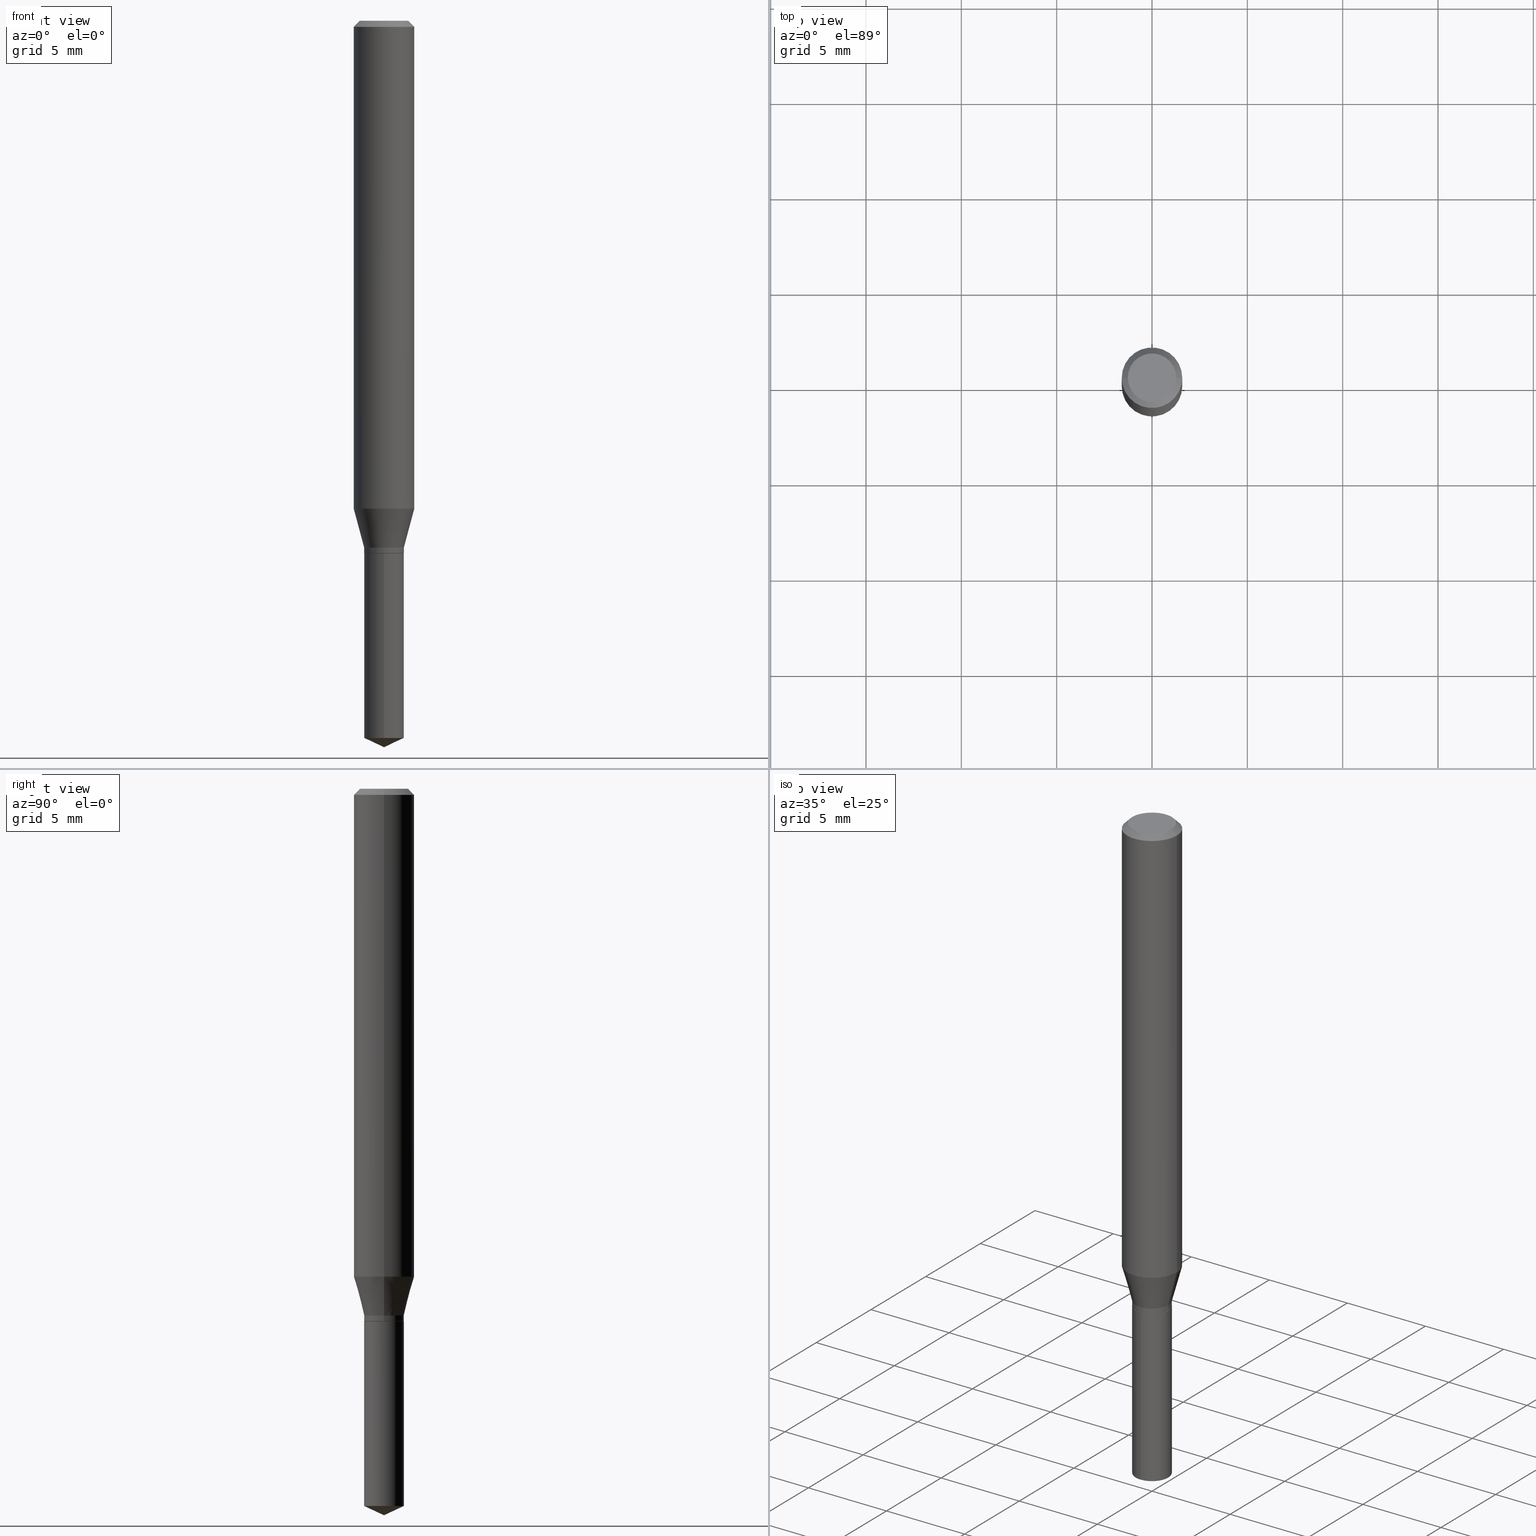
[diagram: canonical four-view strip — front | top / right | iso, engineering-drawing reading convention]
A machine part, canonical four-view strip (front | top / right | iso — engineering-drawing reading convention). The complete STEP part file that produces these views, byte-faithful:
ISO-10303-21;
HEADER;
FILE_DESCRIPTION (( 'STEP AP203' ),
    '1' );
FILE_NAME ('07192.STEP',
    '2024-04-23T19:56:55',
    ( '' ),
    ( '' ),
    'SwSTEP 2.0',
    'SolidWorks 2023',
    '' );
FILE_SCHEMA (( 'CONFIG_CONTROL_DESIGN' ));
ENDSEC;

DATA;
#1 = DIRECTION ( 'NONE',  ( 1.000000000000000000, -6.982962677686265922E-15, 4.875957971899673662E-29 ) ) ;
#2 = EDGE_CURVE ( 'NONE', #490, #420, #137, .T. ) ;
#3 = VECTOR ( 'NONE', #289, 39.37007874015748143 ) ;
#4 = AXIS2_PLACEMENT_3D ( 'NONE', #75, #293, #406 ) ;
#5 = LOCAL_TIME ( 15, 56, 55.00000000000000000, #257 ) ;
#6 = EDGE_CURVE ( 'NONE', #83, #442, #345, .T. ) ;
#7 = LINE ( 'NONE', #282, #467 ) ;
#8 = DESIGN_CONTEXT ( 'detailed design', #149, 'design' ) ;
#9 = CARTESIAN_POINT ( 'NONE',  ( -9.260740279983036507E-28, 1.322265303911854087E-13, 37.87007874015748143 ) ) ;
#10 = CONICAL_SURFACE ( 'NONE', #448, 0.04100000000000000172, 0.2617993877991500740 ) ;
#11 = CARTESIAN_POINT ( 'NONE',  ( 3.668099535622682155E-29, -5.237370474839448718E-15, -1.500000000000000222 ) ) ;
#12 = APPROVAL ( #441, 'UNSPECIFIED' ) ;
#13 = EDGE_LOOP ( 'NONE', ( #434, #386, #171, #367 ) ) ;
#14 = ORIENTED_EDGE ( 'NONE', *, *, #151, .T. ) ;
#15 = AXIS2_PLACEMENT_3D ( 'NONE', #42, #463, #425 ) ;
#16 = VERTEX_POINT ( 'NONE', #240 ) ;
#17 = PRODUCT ( '07192', '07192', '', ( #214 ) ) ;
#18 = DIRECTION ( 'NONE',  ( -2.445468806185136597E-29, 3.491481338843145583E-15, 1.000000000000000000 ) ) ;
#19 = EDGE_CURVE ( 'NONE', #271, #205, #27, .T. ) ;
#20 = COORDINATED_UNIVERSAL_TIME_OFFSET ( 5, 0, .BEHIND. ) ;
#21 = ORIENTED_EDGE ( 'NONE', *, *, #235, .F. ) ;
#22 = DIRECTION ( 'NONE',  ( 2.445468806185136597E-29, -3.491481338843145583E-15, -1.000000000000000000 ) ) ;
#23 = EDGE_LOOP ( 'NONE', ( #328, #244, #462, #356 ) ) ;
#24 = DIRECTION ( 'NONE',  ( -2.445468806185136597E-29, 3.491481338843145583E-15, 1.000000000000000000 ) ) ;
#25 = COORDINATED_UNIVERSAL_TIME_OFFSET ( 5, 0, .BEHIND. ) ;
#26 = CYLINDRICAL_SURFACE ( 'NONE', #464, 0.04100000000000000172 ) ;
#27 = CIRCLE ( 'NONE', #415, 0.04100000000000000172 ) ;
#28 = EDGE_CURVE ( 'NONE', #96, #16, #70, .T. ) ;
#29 = DIRECTION ( 'NONE',  ( -2.445399690415121530E-29, 3.491580316559632610E-15, 1.000000000000000000 ) ) ;
#30 = FACE_OUTER_BOUND ( 'NONE', #432, .T. ) ;
#31 = CARTESIAN_POINT ( 'NONE',  ( -0.06250000000000000000, 3.927916506198521080E-16, -0.01250000000000008049 ) ) ;
#32 = DATE_AND_TIME ( #218, #264 ) ;
#33 = VERTEX_POINT ( 'NONE', #100 ) ;
#34 = FACE_OUTER_BOUND ( 'NONE', #417, .T. ) ;
#35 = FACE_OUTER_BOUND ( 'NONE', #484, .T. ) ;
#36 = CARTESIAN_POINT ( 'NONE',  ( 3.056836007731440539E-31, -4.364351673553960451E-17, -0.01250000000000008049 ) ) ;
#37 = LOCAL_TIME ( 15, 56, 55.00000000000000000, #20 ) ;
#38 = EDGE_CURVE ( 'NONE', #205, #199, #247, .T. ) ;
#39 = AXIS2_PLACEMENT_3D ( 'NONE', #256, #71, #220 ) ;
#40 = EDGE_CURVE ( 'NONE', #16, #96, #476, .T. ) ;
#41 = DIRECTION ( 'NONE',  ( 1.000000000000000000, -6.982962677686267499E-15, 4.876176775795936353E-29 ) ) ;
#42 = CARTESIAN_POINT ( 'NONE',  ( 3.056836007731440539E-31, -4.364351673553960451E-17, -0.01250000000000008049 ) ) ;
#43 = ORIENTED_EDGE ( 'NONE', *, *, #481, .F. ) ;
#44 = CARTESIAN_POINT ( 'NONE',  ( 2.688792952400557567E-29, -3.838883732058038598E-15, -1.099499999999999922 ) ) ;
#45 = EDGE_CURVE ( 'NONE', #33, #442, #222, .T. ) ;
#46 = CIRCLE ( 'NONE', #239, 0.04100000000000000172 ) ;
#47 = ORIENTED_EDGE ( 'NONE', *, *, #91, .F. ) ;
#48 = AXIS2_PLACEMENT_3D ( 'NONE', #186, #450, #411 ) ;
#49 = ORIENTED_EDGE ( 'NONE', *, *, #351, .F. ) ;
#50 = DIRECTION ( 'NONE',  ( -2.445468806185136597E-29, 3.491481338843145583E-15, 1.000000000000000000 ) ) ;
#51 = CONICAL_SURFACE ( 'NONE', #162, 0.04050000000000000128, 0.7853981633974141952 ) ;
#52 = UNCERTAINTY_MEASURE_WITH_UNIT (LENGTH_MEASURE( 1.000000000000000082E-05 ), #140, 'distance_accuracy_value', 'NONE');
#53 = ORIENTED_EDGE ( 'NONE', *, *, #6, .T. ) ;
#54 = VECTOR ( 'NONE', #67, 39.37007874015748854 ) ;
#55 = ADVANCED_FACE ( 'NONE', ( #108 ), #338, .T. ) ;
#56 = CYLINDRICAL_SURFACE ( 'NONE', #262, 0.06250000000000005551 ) ;
#57 = CARTESIAN_POINT ( 'NONE',  ( -0.06250000000000000000, -1.336498027832457228E-15, -0.01250000000000008049 ) ) ;
#58 = EDGE_LOOP ( 'NONE', ( #187, #426, #185, #90 ) ) ;
#59 = PRODUCT_DEFINITION_SHAPE ( 'NONE', 'NONE',  #281 ) ;
#60 = FACE_OUTER_BOUND ( 'NONE', #134, .T. ) ;
#61 = CARTESIAN_POINT ( 'NONE',  ( 3.621422910251190172E-29, -5.170507423083637704E-15, -1.480881386015644896 ) ) ;
#62 = CARTESIAN_POINT ( 'NONE',  ( 2.463714223077906368E-29, -3.517530958629502494E-15, -1.007460907637268921 ) ) ;
#63 = LINE ( 'NONE', #31, #310 ) ;
#64 = DATE_TIME_ROLE ( 'creation_date' ) ;
#65 = ADVANCED_FACE ( 'NONE', ( #30 ), #144, .T. ) ;
#66 = DIRECTION ( 'NONE',  ( -6.982962677686268288E-15, -1.000000000000000000, 3.520397390770518557E-15 ) ) ;
#67 = DIRECTION ( 'NONE',  ( -0.7071067811865232589, 7.493145998870265808E-15, 0.7071067811865715536 ) ) ;
#68 = DIRECTION ( 'NONE',  ( -6.982962677686266711E-15, -1.000000000000000000, 6.663043886986007407E-15 ) ) ;
#69 = DIRECTION ( 'NONE',  ( 2.445468806185136597E-29, -3.491481338843145583E-15, -1.000000000000000000 ) ) ;
#70 = CIRCLE ( 'NONE', #153, 0.04050000000000000128 ) ;
#71 = DIRECTION ( 'NONE',  ( -2.438088387897960049E-29, 3.491481338843145188E-15, 1.000000000000000000 ) ) ;
#72 = COORDINATED_UNIVERSAL_TIME_OFFSET ( 5, 0, .BEHIND. ) ;
#73 = DIRECTION ( 'NONE',  ( -2.445399690415121530E-29, 3.491580316559632610E-15, 1.000000000000000000 ) ) ;
#74 = DIRECTION ( 'NONE',  ( 2.438088387897960049E-29, -3.491481338843145188E-15, -1.000000000000000000 ) ) ;
#75 = CARTESIAN_POINT ( 'NONE',  ( 0.000000000000000000, 0.000000000000000000, 0.000000000000000000 ) ) ;
#76 = ADVANCED_FACE ( 'NONE', ( #373 ), #201, .T. ) ;
#77 = CONICAL_SURFACE ( 'NONE', #184, 84.42940631927278616, 1.134464013796308901 ) ;
#78 = AXIS2_PLACEMENT_3D ( 'NONE', #150, #368, #1 ) ;
#79 = EDGE_CURVE ( 'NONE', #33, #353, #326, .T. ) ;
#80 = CALENDAR_DATE ( 2024, 23, 4 ) ;
#81 = CARTESIAN_POINT ( 'NONE',  ( 0.000000000000000000, 0.000000000000000000, 0.000000000000000000 ) ) ;
#82 = AXIS2_PLACEMENT_3D ( 'NONE', #391, #283, #103 ) ;
#83 = VERTEX_POINT ( 'NONE', #215 ) ;
#84 = DIRECTION ( 'NONE',  ( -2.445468806185136597E-29, 3.491481338843145583E-15, 1.000000000000000000 ) ) ;
#85 = DIRECTION ( 'NONE',  ( -2.445468806185136597E-29, 3.491481338843145583E-15, 1.000000000000000000 ) ) ;
#86 = ADVANCED_FACE ( 'NONE', ( #365 ), #445, .F. ) ;
#87 = DIRECTION ( 'NONE',  ( 1.000000000000000000, -6.982962677686261977E-15, 0.000000000000000000 ) ) ;
#88 = AXIS2_PLACEMENT_3D ( 'NONE', #485, #258, #110 ) ;
#89 = CARTESIAN_POINT ( 'NONE',  ( 2.690015686803650369E-29, -3.840629472727460101E-15, -1.100000000000000089 ) ) ;
#90 = ORIENTED_EDGE ( 'NONE', *, *, #216, .F. ) ;
#91 = EDGE_CURVE ( 'NONE', #379, #200, #388, .T. ) ;
#92 = PERSON_AND_ORGANIZATION_ROLE ( 'creator' ) ;
#93 = DIRECTION ( 'NONE',  ( -2.445399690415121530E-29, 3.491580316559632610E-15, 1.000000000000000000 ) ) ;
#94 = CARTESIAN_POINT ( 'NONE',  ( 3.668099535622682715E-29, -5.237370474839449507E-15, -1.500000000000000222 ) ) ;
#95 = PERSON_AND_ORGANIZATION ( #342, #374 ) ;
#96 = VERTEX_POINT ( 'NONE', #329 ) ;
#97 = CC_DESIGN_SECURITY_CLASSIFICATION ( #120, ( #456 ) ) ;
#98 = PLANE ( 'NONE',  #195 ) ;
#99 = ADVANCED_FACE ( 'NONE', ( #212 ), #489, .T. ) ;
#100 = CARTESIAN_POINT ( 'NONE',  ( -2.863014697851007008E-16, -0.04100000000000518507, -1.480881386015644674 ) ) ;
#101 = CARTESIAN_POINT ( 'NONE',  ( 2.913225216616679097E-16, 0.04099999999999616451, -1.100000000000000089 ) ) ;
#102 = AXIS2_PLACEMENT_3D ( 'NONE', #354, #18, #357 ) ;
#103 = DIRECTION ( 'NONE',  ( 1.000000000000000000, 0.000000000000000000, 0.000000000000000000 ) ) ;
#104 = DIRECTION ( 'NONE',  ( 6.982962677686265922E-15, 1.000000000000000000, -3.491580316559632610E-15 ) ) ;
#105 = CONICAL_SURFACE ( 'NONE', #330, 0.04050000000000000128, 0.7853981633974141952 ) ;
#106 = DIRECTION ( 'NONE',  ( -6.982962677686266711E-15, -1.000000000000000000, 3.331521943493003704E-15 ) ) ;
#107 = DATE_AND_TIME ( #447, #284 ) ;
#108 = FACE_OUTER_BOUND ( 'NONE', #161, .T. ) ;
#109 = LINE ( 'NONE', #146, #223 ) ;
#110 = DIRECTION ( 'NONE',  ( 1.000000000000000000, -6.982962677686261977E-15, 0.000000000000000000 ) ) ;
#111 = ADVANCED_FACE ( 'NONE', ( #34 ), #308, .T. ) ;
#112 = DATE_AND_TIME ( #80, #431 ) ;
#113 = ORIENTED_EDGE ( 'NONE', *, *, #151, .F. ) ;
#114 = ADVANCED_FACE ( 'NONE', ( #362 ), #26, .T. ) ;
#115 = EDGE_LOOP ( 'NONE', ( #475, #47, #159, #455 ) ) ;
#116 = ORIENTED_EDGE ( 'NONE', *, *, #38, .F. ) ;
#117 = ORIENTED_EDGE ( 'NONE', *, *, #158, .T. ) ;
#118 = FACE_OUTER_BOUND ( 'NONE', #414, .T. ) ;
#119 = AXIS2_PLACEMENT_3D ( 'NONE', #440, #29, #106 ) ;
#120 = SECURITY_CLASSIFICATION ( '', '', #437 ) ;
#121 = DIRECTION ( 'NONE',  ( -2.445468806185136597E-29, 3.491481338843145583E-15, 1.000000000000000000 ) ) ;
#122 = EDGE_CURVE ( 'NONE', #466, #199, #377, .T. ) ;
#123 = EDGE_LOOP ( 'NONE', ( #347, #382, #43 ) ) ;
#124 = CARTESIAN_POINT ( 'NONE',  ( 2.690015686803650369E-29, -3.840629472727460101E-15, -1.100000000000000089 ) ) ;
#125 = ORIENTED_EDGE ( 'NONE', *, *, #147, .T. ) ;
#126 = CLOSED_SHELL ( 'NONE', ( #99, #111, #229, #114, #86 ) ) ;
#127 = EDGE_CURVE ( 'NONE', #254, #471, #248, .T. ) ;
#128 = EDGE_LOOP ( 'NONE', ( #372, #209 ) ) ;
#129 = CALENDAR_DATE ( 2024, 23, 4 ) ;
#130 = DIRECTION ( 'NONE',  ( 1.000000000000000000, -6.982962677686264344E-15, 0.000000000000000000 ) ) ;
#131 = ORIENTED_EDGE ( 'NONE', *, *, #428, .T. ) ;
#132 = DIRECTION ( 'NONE',  ( -2.445468806185136597E-29, 3.491481338843145583E-15, 1.000000000000000000 ) ) ;
#133 = PERSON_AND_ORGANIZATION_ROLE ( 'design_supplier' ) ;
#134 = EDGE_LOOP ( 'NONE', ( #389, #131, #230, #314 ) ) ;
#135 = CC_DESIGN_APPROVAL ( #454, ( #281 ) ) ;
#136 = CARTESIAN_POINT ( 'NONE',  ( 0.06250000000000012490, -3.953966125984894953E-15, -1.007460907637268921 ) ) ;
#137 = CIRCLE ( 'NONE', #302, 0.06250000000000012490 ) ;
#138 = DIRECTION ( 'NONE',  ( 1.000000000000000000, -6.982962677686261189E-15, 0.000000000000000000 ) ) ;
#139 = DIRECTION ( 'NONE',  ( -2.445468806185136597E-29, 3.491481338843145583E-15, 1.000000000000000000 ) ) ;
#140 =( CONVERSION_BASED_UNIT ( 'INCH', #204 ) LENGTH_UNIT ( ) NAMED_UNIT ( #387 ) );
#141 = DIRECTION ( 'NONE',  ( -6.982962677686266711E-15, -1.000000000000000000, 3.331521943493003704E-15 ) ) ;
#142 = CARTESIAN_POINT ( 'NONE',  ( -0.04100000000000000172, -3.506361730598048595E-15, -1.087700000000000111 ) ) ;
#143 = AXIS2_PLACEMENT_3D ( 'NONE', #291, #251, #87 ) ;
#144 = CYLINDRICAL_SURFACE ( 'NONE', #4, 0.04100000000000000172 ) ;
#145 = AXIS2_PLACEMENT_3D ( 'NONE', #307, #121, #339 ) ;
#146 = CARTESIAN_POINT ( 'NONE',  ( 3.668252923656895710E-29, -5.237152723863177100E-15, -1.500000000000000222 ) ) ;
#147 = EDGE_CURVE ( 'NONE', #271, #466, #270, .T. ) ;
#148 = CARTESIAN_POINT ( 'NONE',  ( 2.690015686803650369E-29, -3.840629472727460101E-15, -1.100000000000000089 ) ) ;
#149 = APPLICATION_CONTEXT ( 'configuration controlled 3d designs of mechanical parts and assemblies' ) ;
#150 = CARTESIAN_POINT ( 'NONE',  ( 3.893286209682126177E-47, -5.558580879666067980E-33, -1.592040838891559689E-18 ) ) ;
#151 = EDGE_CURVE ( 'NONE', #199, #420, #384, .T. ) ;
#152 = AXIS2_PLACEMENT_3D ( 'NONE', #44, #132, #418 ) ;
#153 = AXIS2_PLACEMENT_3D ( 'NONE', #89, #285, #138 ) ;
#154 = APPROVAL_PERSON_ORGANIZATION ( #182, #12, #321 ) ;
#155 = DIRECTION ( 'NONE',  ( -2.445468806185136877E-29, 3.491481338843145188E-15, 1.000000000000000000 ) ) ;
#156 = DIRECTION ( 'NONE',  ( -6.982962677686268288E-15, -1.000000000000000000, 3.520397390770518557E-15 ) ) ;
#157 = APPROVAL_PERSON_ORGANIZATION ( #361, #454, #402 ) ;
#158 = EDGE_CURVE ( 'NONE', #205, #271, #352, .T. ) ;
#159 = ORIENTED_EDGE ( 'NONE', *, *, #336, .T. ) ;
#160 = DIRECTION ( 'NONE',  ( -1.000000000000000000, 6.982962677686266711E-15, 0.000000000000000000 ) ) ;
#161 = EDGE_LOOP ( 'NONE', ( #259, #430, #14, #237 ) ) ;
#162 = AXIS2_PLACEMENT_3D ( 'NONE', #124, #273, #306 ) ;
#163 = ORIENTED_EDGE ( 'NONE', *, *, #79, .F. ) ;
#164 = VECTOR ( 'NONE', #268, 39.37007874015748143 ) ;
#165 = ADVANCED_FACE ( 'NONE', ( #233 ), #51, .T. ) ;
#166 = CIRCLE ( 'NONE', #145, 0.06250000000000012490 ) ;
#167 = DIRECTION ( 'NONE',  ( 1.000000000000000000, -6.982962677686261977E-15, 0.000000000000000000 ) ) ;
#168 = ORIENTED_EDGE ( 'NONE', *, *, #423, .T. ) ;
#169 = DIRECTION ( 'NONE',  ( 1.000000000000000000, -6.982962677686267499E-15, 4.876176775795936353E-29 ) ) ;
#170 = PERSON_AND_ORGANIZATION ( #342, #374 ) ;
#171 = ORIENTED_EDGE ( 'NONE', *, *, #127, .F. ) ;
#172 = CARTESIAN_POINT ( 'NONE',  ( 0.04100000000000000172, -4.083985722044826376E-15, -1.087700000000000111 ) ) ;
#173 = CARTESIAN_POINT ( 'NONE',  ( 2.690015686803650369E-29, -3.840629472727460101E-15, -1.100000000000000089 ) ) ;
#174 = ADVANCED_FACE ( 'NONE', ( #393 ), #56, .T. ) ;
#175 = LINE ( 'NONE', #101, #3 ) ;
#176 =( NAMED_UNIT ( * ) PLANE_ANGLE_UNIT ( ) SI_UNIT ( $, .RADIAN. ) );
#177 = CARTESIAN_POINT ( 'NONE',  ( 2.690015686803650369E-29, -3.840629472727460101E-15, -1.100000000000000089 ) ) ;
#178 = FACE_OUTER_BOUND ( 'NONE', #128, .T. ) ;
#179 = CARTESIAN_POINT ( 'NONE',  ( 2.690015686803650369E-29, -3.840629472727460101E-15, -1.100000000000000089 ) ) ;
#180 = FACE_OUTER_BOUND ( 'NONE', #468, .T. ) ;
#181 = EDGE_CURVE ( 'NONE', #312, #33, #343, .T. ) ;
#182 = PERSON_AND_ORGANIZATION ( #342, #374 ) ;
#183 = CARTESIAN_POINT ( 'NONE',  ( -9.260740279983036507E-28, 1.322265303911854087E-13, 37.87007874015748143 ) ) ;
#184 = AXIS2_PLACEMENT_3D ( 'NONE', #9, #381, #156 ) ;
#185 = ORIENTED_EDGE ( 'NONE', *, *, #261, .T. ) ;
#186 = CARTESIAN_POINT ( 'NONE',  ( 2.690015686803650369E-29, -3.840629472727460101E-15, -1.100000000000000089 ) ) ;
#187 = ORIENTED_EDGE ( 'NONE', *, *, #398, .F. ) ;
#188 =( GEOMETRIC_REPRESENTATION_CONTEXT ( 3 ) GLOBAL_UNCERTAINTY_ASSIGNED_CONTEXT ( ( #52 ) ) GLOBAL_UNIT_ASSIGNED_CONTEXT ( ( #140, #176, #482 ) ) REPRESENTATION_CONTEXT ( 'NONE', 'WORKASPACE' ) );
#189 = FACE_OUTER_BOUND ( 'NONE', #123, .T. ) ;
#190 = ORIENTED_EDGE ( 'NONE', *, *, #481, .T. ) ;
#191 = ADVANCED_FACE ( 'NONE', ( #60 ), #335, .T. ) ;
#192 = CARTESIAN_POINT ( 'NONE',  ( 0.04100000000000000172, -4.083985722044826376E-15, -1.087700000000000111 ) ) ;
#193 = ORIENTED_EDGE ( 'NONE', *, *, #45, .F. ) ;
#194 = CYLINDRICAL_SURFACE ( 'NONE', #403, 0.06250000000000005551 ) ;
#195 = AXIS2_PLACEMENT_3D ( 'NONE', #397, #74, #486 ) ;
#196 = VECTOR ( 'NONE', #322, 39.37007874015748143 ) ;
#197 = ORIENTED_EDGE ( 'NONE', *, *, #79, .T. ) ;
#198 = PRODUCT_RELATED_PRODUCT_CATEGORY ( 'detail', '', ( #17 ) ) ;
#199 = VERTEX_POINT ( 'NONE', #192 ) ;
#200 = VERTEX_POINT ( 'NONE', #341 ) ;
#201 = CONICAL_SURFACE ( 'NONE', #416, 0.06250000000000000000, 0.7853981633974452814 ) ;
#202 = ORIENTED_EDGE ( 'NONE', *, *, #122, .F. ) ;
#203 = CARTESIAN_POINT ( 'NONE',  ( 0.000000000000000000, 0.000000000000000000, 0.000000000000000000 ) ) ;
#204 = LENGTH_MEASURE_WITH_UNIT ( LENGTH_MEASURE( 0.02539999999999999897 ), #246 );
#205 = VERTEX_POINT ( 'NONE', #315 ) ;
#206 = CARTESIAN_POINT ( 'NONE',  ( 0.06250000000000000000, -4.800786840909312308E-16, -0.01250000000000008049 ) ) ;
#207 = ADVANCED_FACE ( 'NONE', ( #228 ), #194, .T. ) ;
#208 = PERSON_AND_ORGANIZATION ( #342, #374 ) ;
#209 = ORIENTED_EDGE ( 'NONE', *, *, #40, .F. ) ;
#210 = LINE ( 'NONE', #252, #390 ) ;
#211 = PERSON_AND_ORGANIZATION_ROLE ( 'classification_officer' ) ;
#212 = FACE_OUTER_BOUND ( 'NONE', #396, .T. ) ;
#213 = DIRECTION ( 'NONE',  ( 0.7071067811865232589, -2.468850131082003836E-15, 0.7071067811865715536 ) ) ;
#214 = MECHANICAL_CONTEXT ( 'NONE', #277, 'mechanical' ) ;
#215 = CARTESIAN_POINT ( 'NONE',  ( 2.913225216616773267E-16, 0.04099999999999616451, -1.100000000000000089 ) ) ;
#216 = EDGE_CURVE ( 'NONE', #471, #254, #436, .T. ) ;
#217 = DIRECTION ( 'NONE',  ( 0.7071067811865453523, -7.319954787623248157E-15, -0.7071067811865496822 ) ) ;
#218 = CALENDAR_DATE ( 2024, 23, 4 ) ;
#219 = DIRECTION ( 'NONE',  ( 2.445399690415121250E-29, -3.491580316559632610E-15, -1.000000000000000000 ) ) ;
#220 = DIRECTION ( 'NONE',  ( 1.000000000000000000, -6.982962677686265922E-15, 4.876176775795935793E-29 ) ) ;
#221 = ORIENTED_EDGE ( 'NONE', *, *, #147, .F. ) ;
#222 = LINE ( 'NONE', #333, #319 ) ;
#223 = VECTOR ( 'NONE', #320, 39.37007874015748854 ) ;
#224 = DATE_AND_TIME ( #409, #5 ) ;
#225 = AXIS2_PLACEMENT_3D ( 'NONE', #179, #219, #104 ) ;
#226 = VECTOR ( 'NONE', #249, 39.37007874015748143 ) ;
#227 = APPROVAL_DATE_TIME ( #224, #290 ) ;
#228 = FACE_OUTER_BOUND ( 'NONE', #58, .T. ) ;
#229 = ADVANCED_FACE ( 'NONE', ( #189 ), #77, .T. ) ;
#230 = ORIENTED_EDGE ( 'NONE', *, *, #127, .T. ) ;
#231 = DIRECTION ( 'NONE',  ( 1.000000000000000000, -6.982962677686267499E-15, 4.876176775795935232E-29 ) ) ;
#232 = ORIENTED_EDGE ( 'NONE', *, *, #40, .T. ) ;
#233 = FACE_OUTER_BOUND ( 'NONE', #288, .T. ) ;
#234 = DIRECTION ( 'NONE',  ( -6.328713451373352024E-15, -0.9063077870366461619, 0.4226182617407073239 ) ) ;
#235 = EDGE_CURVE ( 'NONE', #420, #490, #166, .T. ) ;
#236 = ORIENTED_EDGE ( 'NONE', *, *, #465, .T. ) ;
#237 = ORIENTED_EDGE ( 'NONE', *, *, #2, .F. ) ;
#238 = PERSON_AND_ORGANIZATION_ROLE ( 'creator' ) ;
#239 = AXIS2_PLACEMENT_3D ( 'NONE', #61, #253, #68 ) ;
#240 = CARTESIAN_POINT ( 'NONE',  ( -0.04050000000000000128, -3.550210437570508464E-15, -1.100000000000000089 ) ) ;
#241 = CC_DESIGN_DATE_AND_TIME_ASSIGNMENT ( #32, #64, ( #281 ) ) ;
#242 = DIRECTION ( 'NONE',  ( -2.445468806185136597E-29, 3.491481338843145583E-15, 1.000000000000000000 ) ) ;
#243 = APPROVAL_DATE_TIME ( #107, #454 ) ;
#244 = ORIENTED_EDGE ( 'NONE', *, *, #351, .T. ) ;
#245 = LINE ( 'NONE', #477, #54 ) ;
#246 =( LENGTH_UNIT ( ) NAMED_UNIT ( * ) SI_UNIT ( $, .METRE. ) );
#247 = LINE ( 'NONE', #350, #196 ) ;
#248 = CIRCLE ( 'NONE', #102, 0.06250000000000000000 ) ;
#249 = DIRECTION ( 'NONE',  ( -2.445468806185136877E-29, 3.491481338843145188E-15, 1.000000000000000000 ) ) ;
#250 = EDGE_CURVE ( 'NONE', #200, #379, #419, .T. ) ;
#251 = DIRECTION ( 'NONE',  ( -2.445468806185136597E-29, 3.491481338843145583E-15, 1.000000000000000000 ) ) ;
#252 = CARTESIAN_POINT ( 'NONE',  ( 0.04050000000000000128, -4.123439461173753935E-15, -1.100000000000000089 ) ) ;
#253 = DIRECTION ( 'NONE',  ( -2.445399690415121530E-29, 3.491580316559632610E-15, 1.000000000000000000 ) ) ;
#254 = VERTEX_POINT ( 'NONE', #206 ) ;
#255 = DIRECTION ( 'NONE',  ( -2.445399690415121810E-29, 3.491580316559632610E-15, 1.000000000000000000 ) ) ;
#256 = CARTESIAN_POINT ( 'NONE',  ( 2.690015686803650369E-29, -3.840629472727460101E-15, -1.100000000000000089 ) ) ;
#257 = COORDINATED_UNIVERSAL_TIME_OFFSET ( 5, 0, .BEHIND. ) ;
#258 = DIRECTION ( 'NONE',  ( -2.445468806185136597E-29, 3.491481338843145583E-15, 1.000000000000000000 ) ) ;
#259 = ORIENTED_EDGE ( 'NONE', *, *, #465, .F. ) ;
#260 = VECTOR ( 'NONE', #217, 39.37007874015748143 ) ;
#261 = EDGE_CURVE ( 'NONE', #420, #254, #7, .T. ) ;
#262 = AXIS2_PLACEMENT_3D ( 'NONE', #81, #242, #169 ) ;
#263 = APPROVAL_ROLE ( '' ) ;
#264 = LOCAL_TIME ( 15, 56, 55.00000000000000000, #72 ) ;
#265 = DIRECTION ( 'NONE',  ( 0.2588190451025213501, 1.565188264969621968E-15, 0.9659258262890682012 ) ) ;
#266 = EDGE_CURVE ( 'NONE', #199, #466, #305, .T. ) ;
#267 = CIRCLE ( 'NONE', #119, 0.04100000000000000172 ) ;
#268 = DIRECTION ( 'NONE',  ( -2.445468806185136877E-29, 3.491481338843145188E-15, 1.000000000000000000 ) ) ;
#269 = ORIENTED_EDGE ( 'NONE', *, *, #19, .T. ) ;
#270 = LINE ( 'NONE', #380, #164 ) ;
#271 = VERTEX_POINT ( 'NONE', #435 ) ;
#272 = CC_DESIGN_PERSON_AND_ORGANIZATION_ASSIGNMENT ( #170, #133, ( #456 ) ) ;
#273 = DIRECTION ( 'NONE',  ( -2.445468806185136597E-29, 3.491481338843145583E-15, 1.000000000000000000 ) ) ;
#274 = AXIS2_PLACEMENT_3D ( 'NONE', #203, #84, #231 ) ;
#275 = ORIENTED_EDGE ( 'NONE', *, *, #266, .F. ) ;
#276 = CLOSED_SHELL ( 'NONE', ( #407, #191, #174, #344, #65, #318, #55, #207, #76, #358, #459, #165 ) ) ;
#277 = APPLICATION_CONTEXT ( 'configuration controlled 3d designs of mechanical parts and assemblies' ) ;
#278 = ORIENTED_EDGE ( 'NONE', *, *, #250, .T. ) ;
#279 = COORDINATED_UNIVERSAL_TIME_OFFSET ( 5, 0, .BEHIND. ) ;
#280 = ORIENTED_EDGE ( 'NONE', *, *, #38, .T. ) ;
#281 = PRODUCT_DEFINITION ( 'UNKNOWN', '', #456, #8 ) ;
#282 = CARTESIAN_POINT ( 'NONE',  ( 0.06250000000000005551, -4.364351673553921131E-16, 3.047610484872463023E-30 ) ) ;
#283 = DIRECTION ( 'NONE',  ( 0.000000000000000000, 0.000000000000000000, 1.000000000000000000 ) ) ;
#284 = LOCAL_TIME ( 15, 56, 55.00000000000000000, #279 ) ;
#285 = DIRECTION ( 'NONE',  ( -2.445468806185136597E-29, 3.491481338843145583E-15, 1.000000000000000000 ) ) ;
#286 = LINE ( 'NONE', #142, #295 ) ;
#287 = PERSON_AND_ORGANIZATION ( #342, #374 ) ;
#288 = EDGE_LOOP ( 'NONE', ( #49, #232, #309, #438 ) ) ;
#289 = DIRECTION ( 'NONE',  ( -2.445399690415121810E-29, 3.491580316559632610E-15, 1.000000000000000000 ) ) ;
#290 = APPROVAL ( #412, 'UNSPECIFIED' ) ;
#291 = CARTESIAN_POINT ( 'NONE',  ( 2.659936420487573506E-29, -3.797684252259689536E-15, -1.087700000000000111 ) ) ;
#292 = DIRECTION ( 'NONE',  ( -0.2588190451025213501, 5.211531920934551042E-15, 0.9659258262890682012 ) ) ;
#293 = DIRECTION ( 'NONE',  ( -2.445468806185136597E-29, 3.491481338843145583E-15, 1.000000000000000000 ) ) ;
#294 = ADVANCED_BREP_SHAPE_REPRESENTATION ( '07192', ( #369, #375, #82 ), #188 ) ;
#295 = VECTOR ( 'NONE', #292, 39.37007874015747433 ) ;
#296 = FACE_OUTER_BOUND ( 'NONE', #23, .T. ) ;
#297 = DATE_TIME_ROLE ( 'classification_date' ) ;
#298 = DIRECTION ( 'NONE',  ( -6.982962677686266711E-15, -1.000000000000000000, 6.663043886986007407E-15 ) ) ;
#299 = DIRECTION ( 'NONE',  ( -6.982962677686266711E-15, -1.000000000000000000, 3.331521943493003704E-15 ) ) ;
#300 = CC_DESIGN_PERSON_AND_ORGANIZATION_ASSIGNMENT ( #95, #211, ( #120 ) ) ;
#301 = SHAPE_DEFINITION_REPRESENTATION ( #59, #294 ) ;
#302 = AXIS2_PLACEMENT_3D ( 'NONE', #62, #469, #130 ) ;
#303 = ORIENTED_EDGE ( 'NONE', *, *, #423, .F. ) ;
#304 = DIRECTION ( 'NONE',  ( 1.000000000000000000, -6.982962677686261977E-15, 0.000000000000000000 ) ) ;
#305 = CIRCLE ( 'NONE', #460, 0.04100000000000000172 ) ;
#306 = DIRECTION ( 'NONE',  ( 1.000000000000000000, -6.982962677686261189E-15, 0.000000000000000000 ) ) ;
#307 = CARTESIAN_POINT ( 'NONE',  ( 2.463714223077906368E-29, -3.517530958629502494E-15, -1.007460907637268921 ) ) ;
#308 = CONICAL_SURFACE ( 'NONE', #483, 84.42940631927278616, 1.134464013796308901 ) ;
#309 = ORIENTED_EDGE ( 'NONE', *, *, #449, .T. ) ;
#310 = VECTOR ( 'NONE', #366, 39.37007874015748143 ) ;
#311 = ORIENTED_EDGE ( 'NONE', *, *, #181, .F. ) ;
#312 = VERTEX_POINT ( 'NONE', #94 ) ;
#313 = CARTESIAN_POINT ( 'NONE',  ( 0.000000000000000000, 0.000000000000000000, 0.000000000000000000 ) ) ;
#314 = ORIENTED_EDGE ( 'NONE', *, *, #336, .F. ) ;
#315 = CARTESIAN_POINT ( 'NONE',  ( 0.04100000000000000172, -4.125185201843175438E-15, -1.099499999999999922 ) ) ;
#316 = CARTESIAN_POINT ( 'NONE',  ( -0.04100000000000000172, -3.526961470497223126E-15, -1.087700000000000111 ) ) ;
#317 = DIRECTION ( 'NONE',  ( -6.982962677686266711E-15, -1.000000000000000000, 3.331521943493003704E-15 ) ) ;
#318 = ADVANCED_FACE ( 'NONE', ( #118 ), #461, .T. ) ;
#319 = VECTOR ( 'NONE', #255, 39.37007874015748143 ) ;
#320 = DIRECTION ( 'NONE',  ( 6.439704144417007476E-15, 0.9063077870366490485, 0.4226182617407009956 ) ) ;
#321 = APPROVAL_ROLE ( '' ) ;
#322 = DIRECTION ( 'NONE',  ( -2.445468806185136877E-29, 3.491481338843145188E-15, 1.000000000000000000 ) ) ;
#323 = CARTESIAN_POINT ( 'NONE',  ( -0.04999999999999999584, 3.709698922520826725E-16, -1.592040838894077649E-18 ) ) ;
#324 = APPROVAL_STATUS ( 'not_yet_approved' ) ;
#325 = CARTESIAN_POINT ( 'NONE',  ( 3.621422910251190172E-29, -5.170507423083637704E-15, -1.480881386015644896 ) ) ;
#326 = CIRCLE ( 'NONE', #349, 0.04100000000000000172 ) ;
#327 = CARTESIAN_POINT ( 'NONE',  ( 2.659936420487573506E-29, -3.797684252259689536E-15, -1.087700000000000111 ) ) ;
#328 = ORIENTED_EDGE ( 'NONE', *, *, #28, .T. ) ;
#329 = CARTESIAN_POINT ( 'NONE',  ( 0.04050000000000000128, -4.123439461173753935E-15, -1.100000000000000089 ) ) ;
#330 = AXIS2_PLACEMENT_3D ( 'NONE', #401, #24, #408 ) ;
#331 = EDGE_LOOP ( 'NONE', ( #168, #53 ) ) ;
#332 = CC_DESIGN_PERSON_AND_ORGANIZATION_ASSIGNMENT ( #287, #238, ( #281 ) ) ;
#333 = CARTESIAN_POINT ( 'NONE',  ( -2.863014697851100192E-16, -0.04100000000000384587, -1.099999999999999867 ) ) ;
#334 = ORIENTED_EDGE ( 'NONE', *, *, #91, .T. ) ;
#335 = CONICAL_SURFACE ( 'NONE', #413, 0.06250000000000000000, 0.7853981633974452814 ) ;
#336 = EDGE_CURVE ( 'NONE', #379, #471, #63, .T. ) ;
#337 = VECTOR ( 'NONE', #234, 39.37007874015748854 ) ;
#338 = CONICAL_SURFACE ( 'NONE', #88, 0.04100000000000000172, 0.2617993877991500740 ) ;
#339 = DIRECTION ( 'NONE',  ( 1.000000000000000000, -6.982962677686264344E-15, 0.000000000000000000 ) ) ;
#340 = ORIENTED_EDGE ( 'NONE', *, *, #266, .T. ) ;
#341 = CARTESIAN_POINT ( 'NONE',  ( 0.04999999999999999584, -4.077247707424184212E-16, -1.592040838888913461E-18 ) ) ;
#342 = PERSON ( 'UNSPECIFIED', 'UNSPECIFIED', 'UNSPECIFIED', ('UNSPECIFIED'), ('UNSPECIFIED'), ('UNSPECIFIED') ) ;
#343 = LINE ( 'NONE', #11, #337 ) ;
#344 = ADVANCED_FACE ( 'NONE', ( #35 ), #10, .T. ) ;
#345 = CIRCLE ( 'NONE', #429, 0.04100000000000000172 ) ;
#346 = CC_DESIGN_APPROVAL ( #290, ( #120 ) ) ;
#347 = ORIENTED_EDGE ( 'NONE', *, *, #383, .F. ) ;
#348 = ORIENTED_EDGE ( 'NONE', *, *, #45, .T. ) ;
#349 = AXIS2_PLACEMENT_3D ( 'NONE', #325, #73, #298 ) ;
#350 = CARTESIAN_POINT ( 'NONE',  ( 0.04100000000000000172, -2.863014697851369884E-16, 1.999232478076333493E-30 ) ) ;
#351 = EDGE_CURVE ( 'NONE', #16, #271, #245, .T. ) ;
#352 = CIRCLE ( 'NONE', #152, 0.04100000000000000172 ) ;
#353 = VERTEX_POINT ( 'NONE', #370 ) ;
#354 = CARTESIAN_POINT ( 'NONE',  ( 3.056836007731440539E-31, -4.364351673553960451E-17, -0.01250000000000008049 ) ) ;
#355 = PERSON_AND_ORGANIZATION_ROLE ( 'design_owner' ) ;
#356 = ORIENTED_EDGE ( 'NONE', *, *, #449, .F. ) ;
#357 = DIRECTION ( 'NONE',  ( 1.000000000000000000, -6.982962677686266711E-15, 0.000000000000000000 ) ) ;
#358 = ADVANCED_FACE ( 'NONE', ( #180 ), #98, .F. ) ;
#359 = ORIENTED_EDGE ( 'NONE', *, *, #383, .T. ) ;
#360 = LINE ( 'NONE', #443, #226 ) ;
#361 = PERSON_AND_ORGANIZATION ( #342, #374 ) ;
#362 = FACE_OUTER_BOUND ( 'NONE', #410, .T. ) ;
#363 = LINE ( 'NONE', #405, #260 ) ;
#364 = APPLICATION_PROTOCOL_DEFINITION ( 'international standard', 'config_control_design', 1994, #149 ) ;
#365 = FACE_OUTER_BOUND ( 'NONE', #331, .T. ) ;
#366 = DIRECTION ( 'NONE',  ( -0.7071067811865453523, 2.468850131082234184E-15, -0.7071067811865496822 ) ) ;
#367 = ORIENTED_EDGE ( 'NONE', *, *, #261, .F. ) ;
#368 = DIRECTION ( 'NONE',  ( -2.445468806185136597E-29, 3.491481338843145583E-15, 1.000000000000000000 ) ) ;
#369 = MANIFOLD_SOLID_BREP ( 'Body-Move/Copy2[1]', #126 ) ;
#370 = CARTESIAN_POINT ( 'NONE',  ( 2.913225216616773267E-16, 0.04099999999999483224, -1.480881386015645118 ) ) ;
#371 = CC_DESIGN_PERSON_AND_ORGANIZATION_ASSIGNMENT ( #208, #355, ( #17 ) ) ;
#372 = ORIENTED_EDGE ( 'NONE', *, *, #28, .F. ) ;
#373 = FACE_OUTER_BOUND ( 'NONE', #115, .T. ) ;
#374 = ORGANIZATION ( 'UNSPECIFIED', 'UNSPECIFIED', '' ) ;
#375 = MANIFOLD_SOLID_BREP ( 'Body-Move/Copy2[2]', #276 ) ;
#376 = EDGE_CURVE ( 'NONE', #353, #83, #175, .T. ) ;
#377 = CIRCLE ( 'NONE', #143, 0.04100000000000000172 ) ;
#378 = PERSON_AND_ORGANIZATION ( #342, #374 ) ;
#379 = VERTEX_POINT ( 'NONE', #323 ) ;
#380 = CARTESIAN_POINT ( 'NONE',  ( -0.04100000000000000172, 2.913225216616410884E-16, -2.016763387004511589E-30 ) ) ;
#381 = DIRECTION ( 'NONE',  ( -2.445399690415121530E-29, 3.491580316559632610E-15, 1.000000000000000000 ) ) ;
#382 = ORIENTED_EDGE ( 'NONE', *, *, #181, .T. ) ;
#383 = EDGE_CURVE ( 'NONE', #312, #353, #109, .T. ) ;
#384 = LINE ( 'NONE', #172, #444 ) ;
#385 = CARTESIAN_POINT ( 'NONE',  ( 3.893286209682126177E-47, -5.558580879666067980E-33, -1.592040838891559689E-18 ) ) ;
#386 = ORIENTED_EDGE ( 'NONE', *, *, #398, .T. ) ;
#387 = DIMENSIONAL_EXPONENTS ( 1.000000000000000000, 0.000000000000000000, 0.000000000000000000, 0.000000000000000000, 0.000000000000000000, 0.000000000000000000, 0.000000000000000000 ) ;
#388 = CIRCLE ( 'NONE', #78, 0.04999999999999999584 ) ;
#389 = ORIENTED_EDGE ( 'NONE', *, *, #250, .F. ) ;
#390 = VECTOR ( 'NONE', #213, 39.37007874015748854 ) ;
#391 = CARTESIAN_POINT ( 'NONE',  ( 0.000000000000000000, 0.000000000000000000, 0.000000000000000000 ) ) ;
#392 = CARTESIAN_POINT ( 'NONE',  ( 2.688792952400557567E-29, -3.838883732058038598E-15, -1.099499999999999922 ) ) ;
#393 = FACE_OUTER_BOUND ( 'NONE', #13, .T. ) ;
#394 = APPROVAL_PERSON_ORGANIZATION ( #378, #290, #263 ) ;
#395 = APPROVAL_DATE_TIME ( #478, #12 ) ;
#396 = EDGE_LOOP ( 'NONE', ( #197, #488, #303, #193 ) ) ;
#397 = CARTESIAN_POINT ( 'NONE',  ( 1.946643104841063088E-47, -2.779290439833033990E-33, -7.960204194457798443E-19 ) ) ;
#398 = EDGE_CURVE ( 'NONE', #490, #471, #360, .T. ) ;
#399 = APPLICATION_PROTOCOL_DEFINITION ( 'international standard', 'config_control_design', 1994, #277 ) ;
#400 = DIRECTION ( 'NONE',  ( -2.445399690415121530E-29, 3.491580316559632610E-15, 1.000000000000000000 ) ) ;
#401 = CARTESIAN_POINT ( 'NONE',  ( 2.690015686803650369E-29, -3.840629472727460101E-15, -1.100000000000000089 ) ) ;
#402 = APPROVAL_ROLE ( '' ) ;
#403 = AXIS2_PLACEMENT_3D ( 'NONE', #313, #473, #41 ) ;
#404 = DIRECTION ( 'NONE',  ( -1.000000000000000000, 6.982962677686266711E-15, 0.000000000000000000 ) ) ;
#405 = CARTESIAN_POINT ( 'NONE',  ( 0.06250000000000000000, -4.724246415962602840E-16, -0.01250000000000008049 ) ) ;
#406 = DIRECTION ( 'NONE',  ( 1.000000000000000000, -6.982962677686267499E-15, 4.876176775795935232E-29 ) ) ;
#407 = ADVANCED_FACE ( 'NONE', ( #296 ), #105, .T. ) ;
#408 = DIRECTION ( 'NONE',  ( 1.000000000000000000, -6.982962677686261189E-15, 0.000000000000000000 ) ) ;
#409 = CALENDAR_DATE ( 2024, 23, 4 ) ;
#410 = EDGE_LOOP ( 'NONE', ( #424, #190, #348, #453 ) ) ;
#411 = DIRECTION ( 'NONE',  ( 1.000000000000000000, -6.982962677686261189E-15, 0.000000000000000000 ) ) ;
#412 = APPROVAL_STATUS ( 'not_yet_approved' ) ;
#413 = AXIS2_PLACEMENT_3D ( 'NONE', #470, #22, #160 ) ;
#414 = EDGE_LOOP ( 'NONE', ( #221, #269, #280, #202 ) ) ;
#415 = AXIS2_PLACEMENT_3D ( 'NONE', #392, #50, #167 ) ;
#416 = AXIS2_PLACEMENT_3D ( 'NONE', #36, #69, #404 ) ;
#417 = EDGE_LOOP ( 'NONE', ( #311, #359, #163 ) ) ;
#418 = DIRECTION ( 'NONE',  ( 1.000000000000000000, -6.982962677686261977E-15, 0.000000000000000000 ) ) ;
#419 = CIRCLE ( 'NONE', #487, 0.04999999999999999584 ) ;
#420 = VERTEX_POINT ( 'NONE', #136 ) ;
#421 = DIRECTION ( 'NONE',  ( -2.445468806185136597E-29, 3.491481338843145583E-15, 1.000000000000000000 ) ) ;
#422 = CC_DESIGN_APPROVAL ( #12, ( #456 ) ) ;
#423 = EDGE_CURVE ( 'NONE', #442, #83, #267, .T. ) ;
#424 = ORIENTED_EDGE ( 'NONE', *, *, #376, .F. ) ;
#425 = DIRECTION ( 'NONE',  ( 1.000000000000000000, -6.982962677686266711E-15, 0.000000000000000000 ) ) ;
#426 = ORIENTED_EDGE ( 'NONE', *, *, #2, .T. ) ;
#427 = DIRECTION ( 'NONE',  ( 1.000000000000000000, -6.982962677686265922E-15, 4.875957971899673662E-29 ) ) ;
#428 = EDGE_CURVE ( 'NONE', #200, #254, #363, .T. ) ;
#429 = AXIS2_PLACEMENT_3D ( 'NONE', #173, #93, #317 ) ;
#430 = ORIENTED_EDGE ( 'NONE', *, *, #122, .T. ) ;
#431 = LOCAL_TIME ( 15, 56, 55.00000000000000000, #25 ) ;
#432 = EDGE_LOOP ( 'NONE', ( #117, #125, #275, #116 ) ) ;
#433 = PERSON_AND_ORGANIZATION ( #342, #374 ) ;
#434 = ORIENTED_EDGE ( 'NONE', *, *, #235, .T. ) ;
#435 = CARTESIAN_POINT ( 'NONE',  ( -0.04100000000000000172, -3.526961470497223126E-15, -1.099499999999999922 ) ) ;
#436 = CIRCLE ( 'NONE', #15, 0.06250000000000000000 ) ;
#437 = SECURITY_CLASSIFICATION_LEVEL ( 'unclassified' ) ;
#438 = ORIENTED_EDGE ( 'NONE', *, *, #19, .F. ) ;
#439 = CC_DESIGN_DATE_AND_TIME_ASSIGNMENT ( #112, #297, ( #120 ) ) ;
#440 = CARTESIAN_POINT ( 'NONE',  ( 2.690015686803650369E-29, -3.840629472727460101E-15, -1.100000000000000089 ) ) ;
#441 = APPROVAL_STATUS ( 'not_yet_approved' ) ;
#442 = VERTEX_POINT ( 'NONE', #451 ) ;
#443 = CARTESIAN_POINT ( 'NONE',  ( -0.06250000000000005551, 4.440892098500630106E-16, -3.074334431409318916E-30 ) ) ;
#444 = VECTOR ( 'NONE', #265, 39.37007874015747433 ) ;
#445 = PLANE ( 'NONE',  #225 ) ;
#446 = DIRECTION ( 'NONE',  ( 1.000000000000000000, -6.982962677686261977E-15, 0.000000000000000000 ) ) ;
#447 = CALENDAR_DATE ( 2024, 23, 4 ) ;
#448 = AXIS2_PLACEMENT_3D ( 'NONE', #327, #139, #446 ) ;
#449 = EDGE_CURVE ( 'NONE', #96, #205, #210, .T. ) ;
#450 = DIRECTION ( 'NONE',  ( -2.445468806185136597E-29, 3.491481338843145583E-15, 1.000000000000000000 ) ) ;
#451 = CARTESIAN_POINT ( 'NONE',  ( -2.863014697851100192E-16, -0.04100000000000384587, -1.099999999999999867 ) ) ;
#452 = DIRECTION ( 'NONE',  ( -2.445399690415121530E-29, 3.491580316559632610E-15, 1.000000000000000000 ) ) ;
#453 = ORIENTED_EDGE ( 'NONE', *, *, #6, .F. ) ;
#454 = APPROVAL ( #324, 'UNSPECIFIED' ) ;
#455 = ORIENTED_EDGE ( 'NONE', *, *, #216, .T. ) ;
#456 = PRODUCT_DEFINITION_FORMATION_WITH_SPECIFIED_SOURCE ( 'ANY', '', #17, .NOT_KNOWN. ) ;
#457 = AXIS2_PLACEMENT_3D ( 'NONE', #148, #400, #299 ) ;
#458 = CARTESIAN_POINT ( 'NONE',  ( 2.659936420487573506E-29, -3.797684252259689536E-15, -1.087700000000000111 ) ) ;
#459 = ADVANCED_FACE ( 'NONE', ( #178 ), #480, .F. ) ;
#460 = AXIS2_PLACEMENT_3D ( 'NONE', #458, #421, #304 ) ;
#461 = CYLINDRICAL_SURFACE ( 'NONE', #274, 0.04100000000000000172 ) ;
#462 = ORIENTED_EDGE ( 'NONE', *, *, #158, .F. ) ;
#463 = DIRECTION ( 'NONE',  ( -2.445468806185136597E-29, 3.491481338843145583E-15, 1.000000000000000000 ) ) ;
#464 = AXIS2_PLACEMENT_3D ( 'NONE', #177, #479, #141 ) ;
#465 = EDGE_CURVE ( 'NONE', #466, #490, #286, .T. ) ;
#466 = VERTEX_POINT ( 'NONE', #316 ) ;
#467 = VECTOR ( 'NONE', #155, 39.37007874015748143 ) ;
#468 = EDGE_LOOP ( 'NONE', ( #334, #278 ) ) ;
#469 = DIRECTION ( 'NONE',  ( -2.445468806185136597E-29, 3.491481338843145583E-15, 1.000000000000000000 ) ) ;
#470 = CARTESIAN_POINT ( 'NONE',  ( 3.056836007731440539E-31, -4.364351673553960451E-17, -0.01250000000000008049 ) ) ;
#471 = VERTEX_POINT ( 'NONE', #57 ) ;
#472 = CC_DESIGN_PERSON_AND_ORGANIZATION_ASSIGNMENT ( #433, #92, ( #456 ) ) ;
#473 = DIRECTION ( 'NONE',  ( -2.445468806185136597E-29, 3.491481338843145583E-15, 1.000000000000000000 ) ) ;
#474 = CARTESIAN_POINT ( 'NONE',  ( -0.06250000000000012490, -3.073441748779439089E-15, -1.007460907637268921 ) ) ;
#475 = ORIENTED_EDGE ( 'NONE', *, *, #428, .F. ) ;
#476 = CIRCLE ( 'NONE', #48, 0.04050000000000000128 ) ;
#477 = CARTESIAN_POINT ( 'NONE',  ( -0.04050000000000000128, -3.552859664744619665E-15, -1.100000000000000089 ) ) ;
#478 = DATE_AND_TIME ( #129, #37 ) ;
#479 = DIRECTION ( 'NONE',  ( -2.445399690415121530E-29, 3.491580316559632610E-15, 1.000000000000000000 ) ) ;
#480 = PLANE ( 'NONE',  #39 ) ;
#481 = EDGE_CURVE ( 'NONE', #353, #33, #46, .T. ) ;
#482 =( NAMED_UNIT ( * ) SI_UNIT ( $, .STERADIAN. ) SOLID_ANGLE_UNIT ( ) );
#483 = AXIS2_PLACEMENT_3D ( 'NONE', #183, #452, #66 ) ;
#484 = EDGE_LOOP ( 'NONE', ( #340, #236, #21, #113 ) ) ;
#485 = CARTESIAN_POINT ( 'NONE',  ( 2.659936420487573506E-29, -3.797684252259689536E-15, -1.087700000000000111 ) ) ;
#486 = DIRECTION ( 'NONE',  ( -1.000000000000000000, 6.982962677686265922E-15, -4.876176775795935793E-29 ) ) ;
#487 = AXIS2_PLACEMENT_3D ( 'NONE', #385, #85, #427 ) ;
#488 = ORIENTED_EDGE ( 'NONE', *, *, #376, .T. ) ;
#489 = CYLINDRICAL_SURFACE ( 'NONE', #457, 0.04100000000000000172 ) ;
#490 = VERTEX_POINT ( 'NONE', #474 ) ;
ENDSEC;
END-ISO-10303-21;
